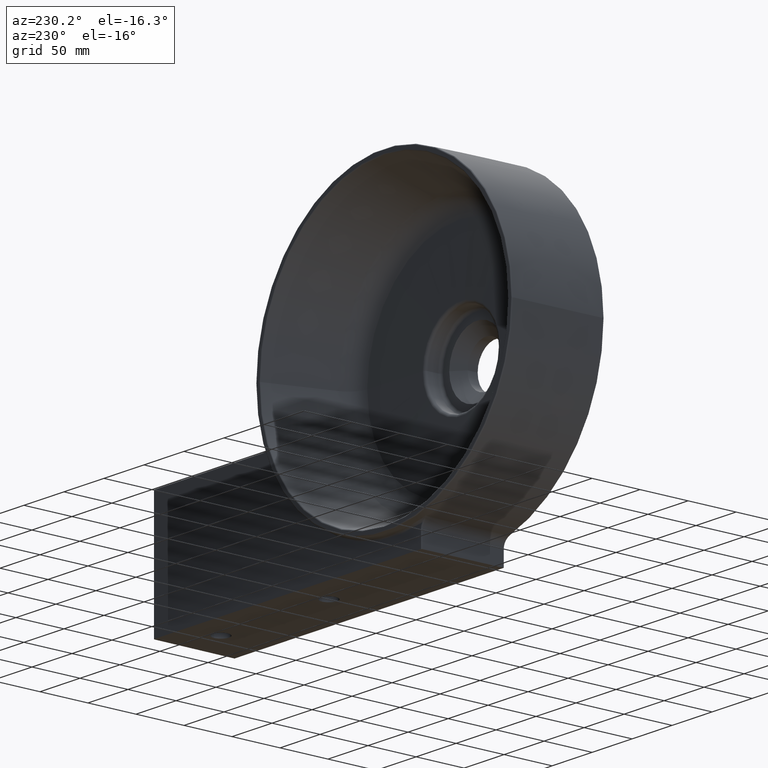
[diagram: clean part render]
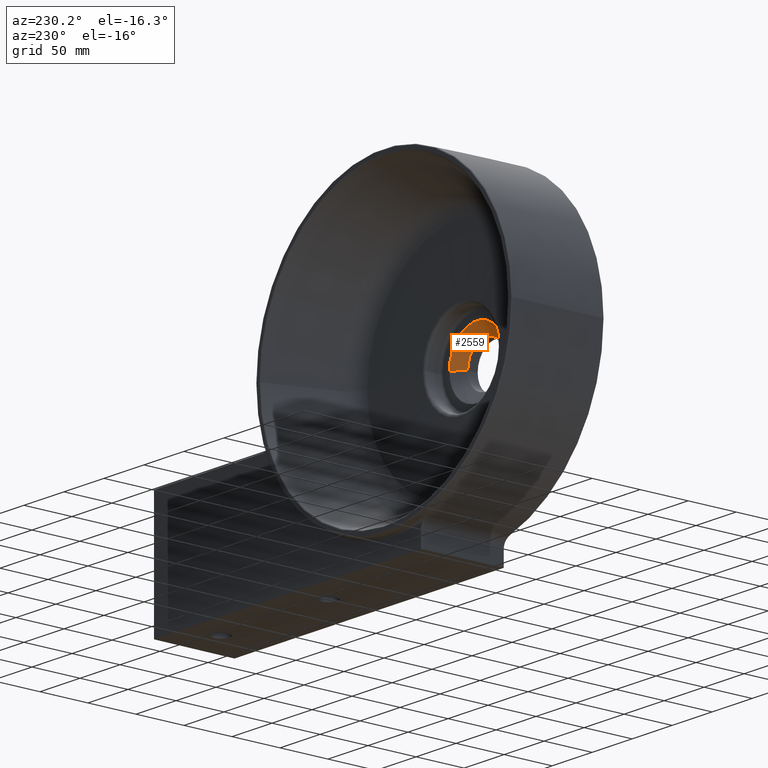
[diagram: same view with one face highlighted and labeled with its STEP entity id]
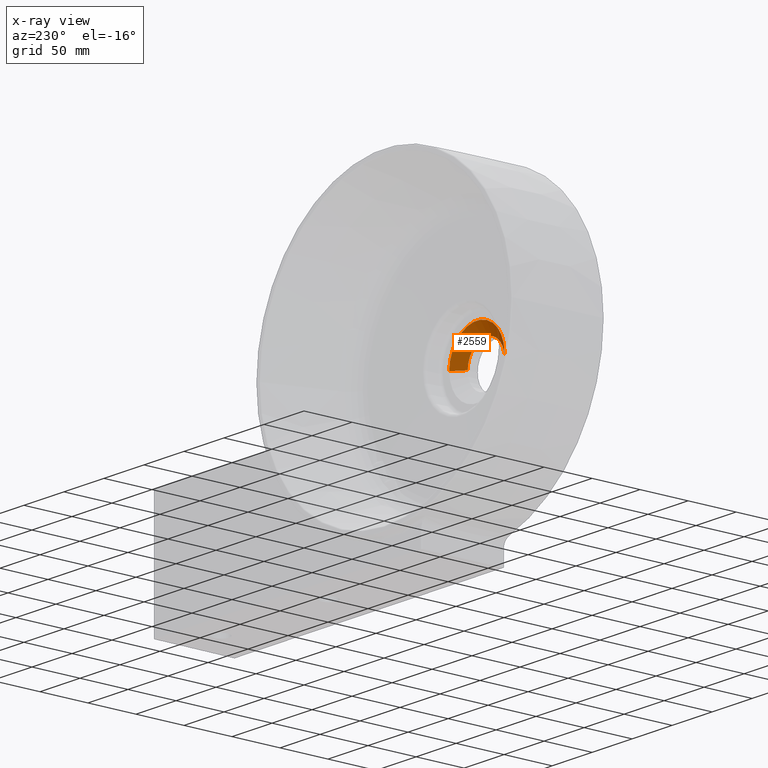
[diagram: x-ray of the same camera — body ghosted, the highlighted face saturated]
A machine part, auxiliary view. The second image highlights one B-rep face of the part: STEP entity #2559.
The next image is the same camera in x-ray: the body ghosted, the highlighted face saturated — about 0% of this face is hidden behind the body in this view.
In plain terms, the highlighted conical surface has half-angle 50 deg.
Its self-contained STEP definition (entity closure, byte-faithful):
#75 = LINE ( 'NONE', #2301, #2798 ) ;
#153 = CARTESIAN_POINT ( 'NONE',  ( 1.299446498230648811E-14, 10.36765313499316044, 0.0000000000000000000 ) ) ;
#196 = CARTESIAN_POINT ( 'NONE',  ( 1.182449736433023898E-14, 20.00000000000000355, 0.0000000000000000000 ) ) ;
#212 = EDGE_CURVE ( 'NONE', #1510, #1084, #1534, .T. ) ;
#420 = DIRECTION ( 'NONE',  ( -1.000000000000000000, -1.508455196501571429E-16, 0.0000000000000000000 ) ) ;
#719 = DIRECTION ( 'NONE',  ( -1.214623636765614367E-16, 1.000000000000000000, -0.0000000000000000000 ) ) ;
#811 = CIRCLE ( 'NONE', #2262, 23.00000000000000000 ) ;
#1011 = FACE_OUTER_BOUND ( 'NONE', #1274, .T. ) ;
#1033 = DIRECTION ( 'NONE',  ( -1.000000000000000000, -1.006238091091363603E-16, 0.0000000000000000000 ) ) ;
#1084 = VERTEX_POINT ( 'NONE', #2315 ) ;
#1104 = DIRECTION ( 'NONE',  ( -1.000000000000000000, -1.508455196501571429E-16, 0.0000000000000000000 ) ) ;
#1274 = EDGE_LOOP ( 'NONE', ( #3297, #1742, #1365, #2877 ) ) ;
#1365 = ORIENTED_EDGE ( 'NONE', *, *, #212, .T. ) ;
#1510 = VERTEX_POINT ( 'NONE', #3019 ) ;
#1526 = EDGE_CURVE ( 'NONE', #1084, #2567, #3724, .T. ) ;
#1534 = LINE ( 'NONE', #2807, #3992 ) ;
#1604 = CARTESIAN_POINT ( 'NONE',  ( 34.47938398148554739, 20.00000000000000711, 4.689800906892845352E-15 ) ) ;
#1742 = ORIENTED_EDGE ( 'NONE', *, *, #2711, .F. ) ;
#1874 = CONICAL_SURFACE ( 'NONE', #3999, 23.00000000000000000, 0.8726646259971670982 ) ;
#2242 = EDGE_CURVE ( 'NONE', #3760, #2567, #75, .T. ) ;
#2262 = AXIS2_PLACEMENT_3D ( 'NONE', #153, #3948, #1104 ) ;
#2301 = CARTESIAN_POINT ( 'NONE',  ( 23.00000000000001421, 10.36765313499316399, 2.816687638038912352E-15 ) ) ;
#2315 = CARTESIAN_POINT ( 'NONE',  ( -34.47938398148551897, 20.00000000000000000, 0.0000000000000000000 ) ) ;
#2559 = ADVANCED_FACE ( 'NONE', ( #1011 ), #1874, .F. ) ;
#2567 = VERTEX_POINT ( 'NONE', #1604 ) ;
#2660 = DIRECTION ( 'NONE',  ( 0.7660444431189793457, 0.6427876096865376976, 9.381338752702749270E-17 ) ) ;
#2711 = EDGE_CURVE ( 'NONE', #1510, #3760, #811, .T. ) ;
#2798 = VECTOR ( 'NONE', #2660, 1000.000000000000114 ) ;
#2807 = CARTESIAN_POINT ( 'NONE',  ( -22.99999999999998579, 10.36765313499315688, 0.0000000000000000000 ) ) ;
#2877 = ORIENTED_EDGE ( 'NONE', *, *, #1526, .T. ) ;
#3019 = CARTESIAN_POINT ( 'NONE',  ( -22.99999999999998579, 10.36765313499315688, 0.0000000000000000000 ) ) ;
#3297 = ORIENTED_EDGE ( 'NONE', *, *, #2242, .F. ) ;
#3441 = DIRECTION ( 'NONE',  ( -0.7660444431189795678, 0.6427876096865374755, 0.0000000000000000000 ) ) ;
#3504 = AXIS2_PLACEMENT_3D ( 'NONE', #196, #3883, #1033 ) ;
#3693 = CARTESIAN_POINT ( 'NONE',  ( 23.00000000000001421, 10.36765313499316399, 3.519597180494395650E-15 ) ) ;
#3724 = CIRCLE ( 'NONE', #3504, 34.47938398148553318 ) ;
#3760 = VERTEX_POINT ( 'NONE', #3693 ) ;
#3883 = DIRECTION ( 'NONE',  ( -1.214623636765614367E-16, 1.000000000000000000, -0.0000000000000000000 ) ) ;
#3884 = CARTESIAN_POINT ( 'NONE',  ( 1.299446498230648811E-14, 10.36765313499316044, 0.0000000000000000000 ) ) ;
#3948 = DIRECTION ( 'NONE',  ( -1.214623636765614367E-16, 1.000000000000000000, -0.0000000000000000000 ) ) ;
#3992 = VECTOR ( 'NONE', #3441, 1000.000000000000114 ) ;
#3999 = AXIS2_PLACEMENT_3D ( 'NONE', #3884, #719, #420 ) ;